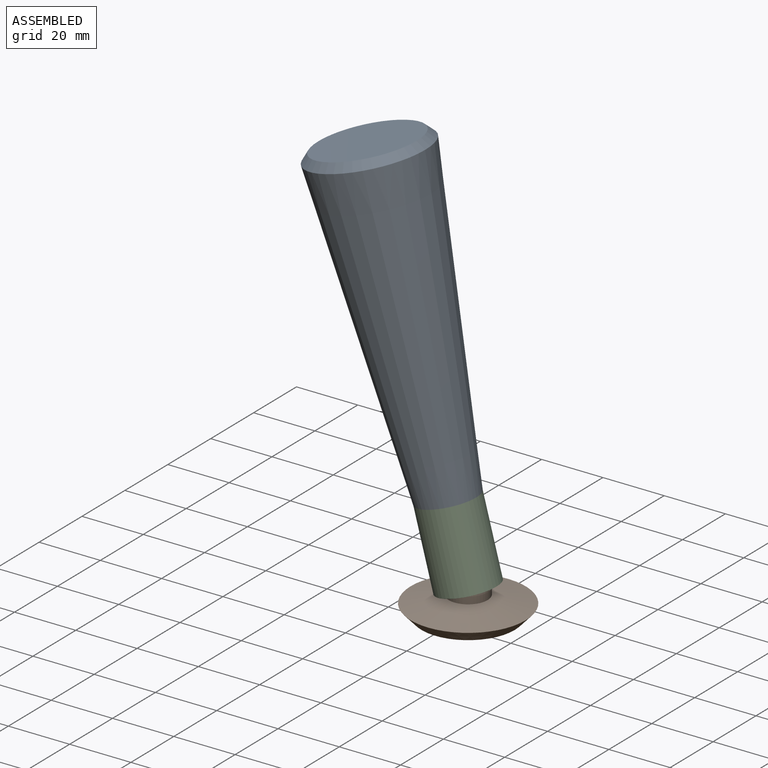
[diagram: assembled view]
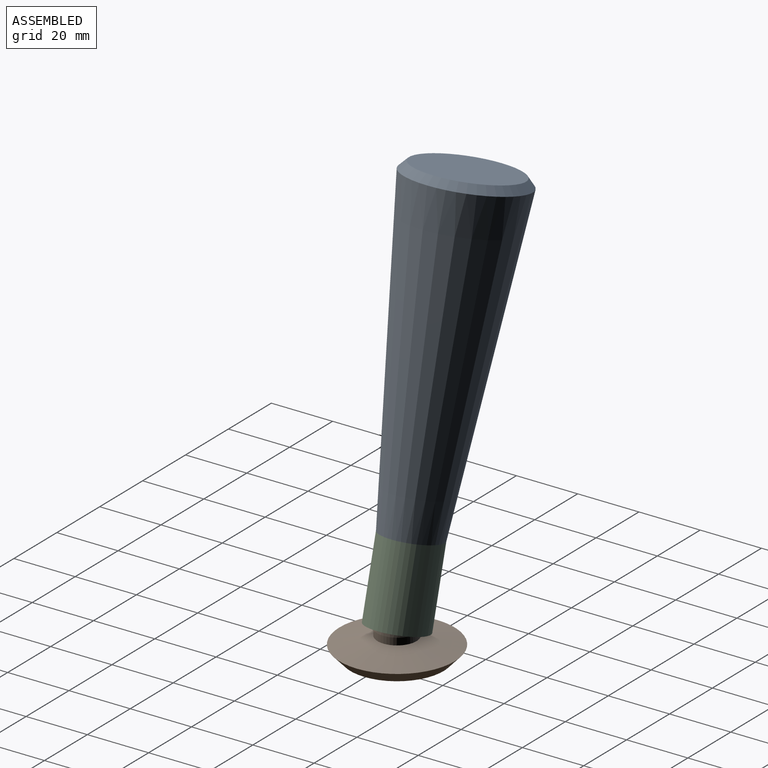
[diagram: assembled view, second angle]
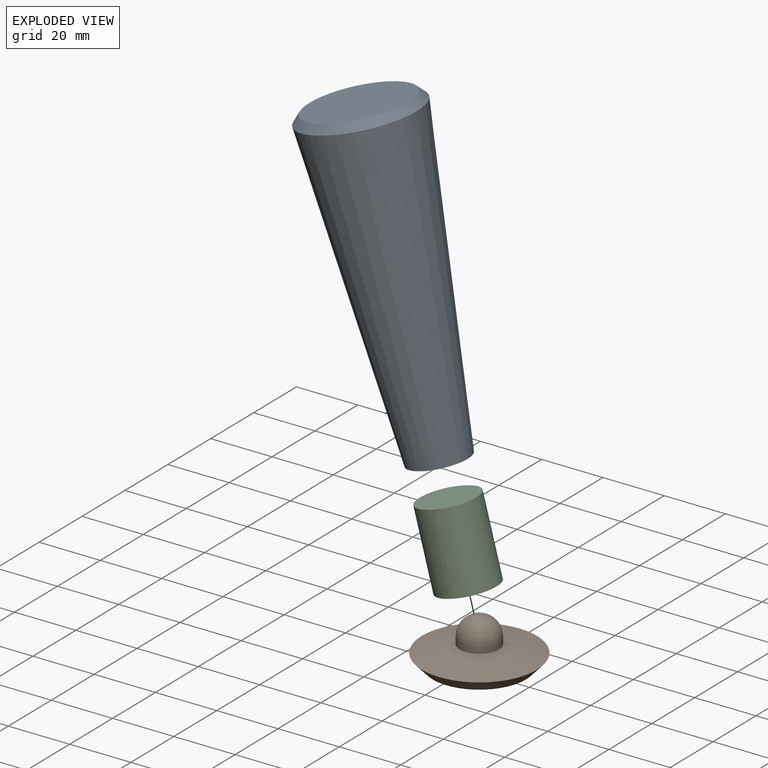
[diagram: exploded view]
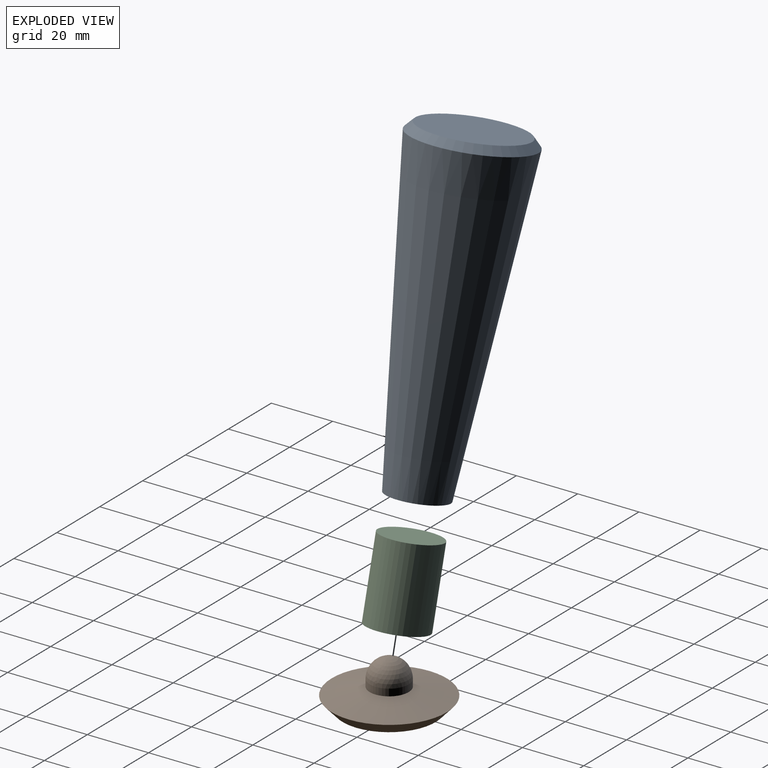
[diagram: exploded view, second angle]
ASSEMBLY  parts=3 mates=2
PART A: 4 faces, bbox 37.6x37.6x101.6 mm
  f0: plane 19.05x19.05mm, normal (0,0,-1), area 285mm2, adj f1
  f1: cone r=9.53mm half-angle=5.4deg, axis (0,0,1), area 8858.6mm2, adj f0,f3
  f2: plane 33.02x33.02mm, normal (0,0,1), area 856.3mm2, adj f3
  f3: cone r=16.51mm half-angle=42.3deg, axis (0,0,-1), area 379.6mm2, adj f1,f2
PART B: 5 faces, bbox 37.5x37.5x15 mm
  f0: plane 30.48x30.48mm, normal (0,0,-1), area 729.7mm2, adj f1
  f1: cone r=15.24mm half-angle=43deg, axis (0,0,1), area 553.9mm2, adj f0,f2
  f2: cone r=18.77mm half-angle=78deg, axis (0,0,-1), area 1002.4mm2, adj f1,f3
  f3: cylinder r=6.35mm len=12.7mm, axis (0,0,1), area 90.5mm2, adj f2,f4
  f4: sphere r=6.35mm, area 253.4mm2, adj f3
PART C: 3 faces, bbox 19.1x19.1x25.4 mm
  f0: cylinder r=9.53mm len=25.4mm, axis (0,0,-1), area 1520.1mm2, adj f1,f2
  f1: plane 19.05x19.05mm, normal (0,0,1), area 285mm2, adj f0
  f2: plane 19.05x19.05mm, normal (0,0,-1), area 285mm2, adj f0
PLACE A rot(axis=(0,-1,0),15deg) t=(7.55,-0.58,-32.83)mm
PLACE B t=(0.47,-0.58,-15.1)mm fixed
PLACE C rot(axis=(0.13,0,-0.99),180deg) t=(0.47,-0.58,-6.4)mm
MATE fastened A.f1 <-> C.f0  axis (0.26,0,-0.97) through (-6.1,-0.58,18.13)mm
MATE ball C.f0 <-> B.f1  axis (0.26,0,-0.97) through (0.47,-0.58,-6.4)mm
